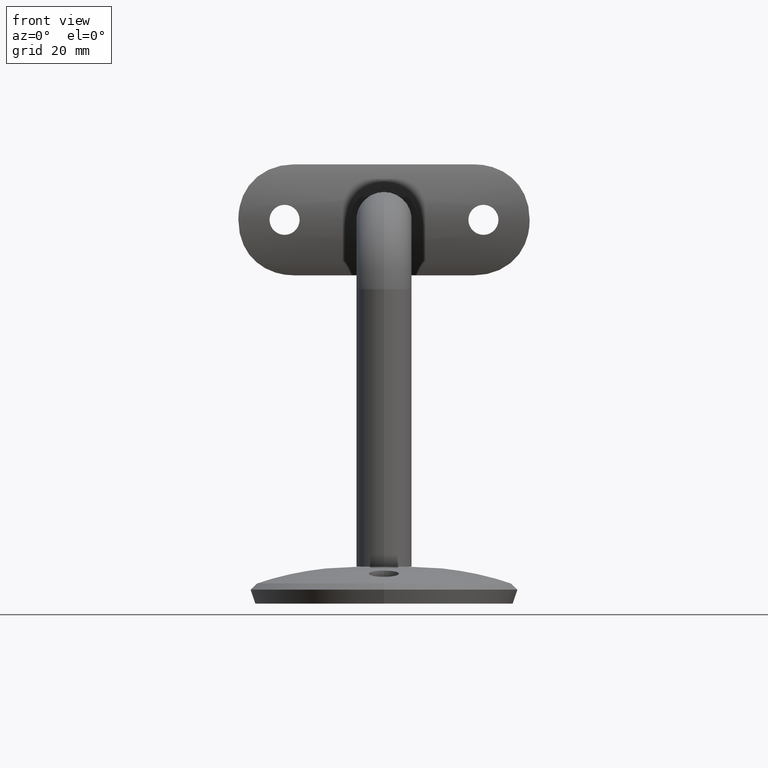
[diagram: clean part render]
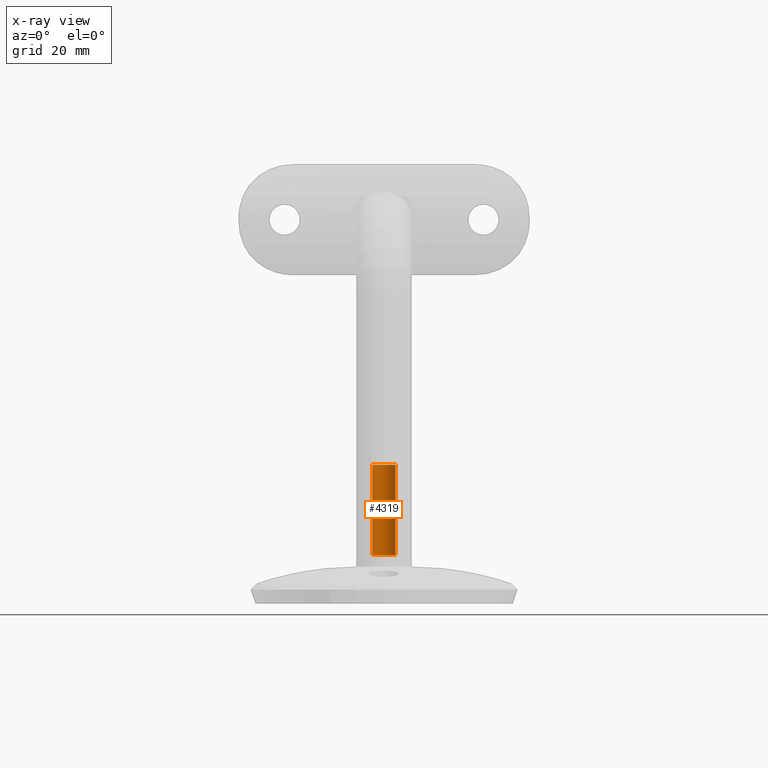
[diagram: x-ray — body ghosted, one internal face saturated and labeled with its STEP entity id]
A machine part, front view, then the same camera in x-ray: the body is ghosted and one INTERNAL B-rep face — a face not visible from any outside direction — is saturated and labeled: STEP entity #4319.
In plain terms, the highlighted cylindrical surface (edge-blend (fillet) strip) has radius 2.5 mm, axis along (-0, -0, -1).
Its self-contained STEP definition (entity closure, byte-faithful):
#326 = ORIENTED_EDGE ( 'NONE', *, *, #15896, .T. ) ;
#830 = VECTOR ( 'NONE', #14554, 1000.000000000000000 ) ;
#1083 = VERTEX_POINT ( 'NONE', #11178 ) ;
#1174 = ORIENTED_EDGE ( 'NONE', *, *, #7601, .F. ) ;
#1278 = ORIENTED_EDGE ( 'NONE', *, *, #15647, .F. ) ;
#1289 = AXIS2_PLACEMENT_3D ( 'NONE', #6117, #3338, #12535 ) ;
#1844 = VERTEX_POINT ( 'NONE', #6984 ) ;
#2052 = AXIS2_PLACEMENT_3D ( 'NONE', #11293, #10214, #11504 ) ;
#2161 = VECTOR ( 'NONE', #5254, 1000.000000000000000 ) ;
#2850 = CARTESIAN_POINT ( 'NONE',  ( -2.499999999999996003, 0.000000000000000000, 0.000000000000000000 ) ) ;
#3338 = DIRECTION ( 'NONE',  ( -0.000000000000000000, -0.000000000000000000, -1.000000000000000000 ) ) ;
#4308 = EDGE_LOOP ( 'NONE', ( #8052, #1174, #326, #1278 ) ) ;
#4319 = ADVANCED_FACE ( 'NONE', ( #16292 ), #10428, .F. ) ;
#4670 = VERTEX_POINT ( 'NONE', #5805 ) ;
#4701 = CARTESIAN_POINT ( 'NONE',  ( 2.499999999999996003, 4.592425496802572000E-16, 2.500000000000002220 ) ) ;
#5254 = DIRECTION ( 'NONE',  ( -0.000000000000000000, -0.000000000000000000, -1.000000000000000000 ) ) ;
#5805 = CARTESIAN_POINT ( 'NONE',  ( 2.499999999999994671, 3.061616997868377718E-16, 22.00000000000000000 ) ) ;
#5813 = CIRCLE ( 'NONE', #13982, 2.499999999999994671 ) ;
#6117 = CARTESIAN_POINT ( 'NONE',  ( 0.000000000000000000, 0.000000000000000000, 0.000000000000000000 ) ) ;
#6459 = LINE ( 'NONE', #2850, #830 ) ;
#6500 = CARTESIAN_POINT ( 'NONE',  ( 2.499999999999996003, 3.061616997868378211E-16, 0.000000000000000000 ) ) ;
#6932 = CARTESIAN_POINT ( 'NONE',  ( 0.000000000000000000, 0.000000000000000000, 22.00000000000000000 ) ) ;
#6984 = CARTESIAN_POINT ( 'NONE',  ( -2.499999999999994671, 0.000000000000000000, 22.00000000000000000 ) ) ;
#7601 = EDGE_CURVE ( 'NONE', #1844, #4670, #5813, .T. ) ;
#8052 = ORIENTED_EDGE ( 'NONE', *, *, #9387, .F. ) ;
#9387 = EDGE_CURVE ( 'NONE', #4670, #14304, #13204, .T. ) ;
#9612 = DIRECTION ( 'NONE',  ( -1.000000000000000000, 0.000000000000000000, 0.000000000000000000 ) ) ;
#10214 = DIRECTION ( 'NONE',  ( 0.000000000000000000, 0.000000000000000000, 1.000000000000000000 ) ) ;
#10428 = CYLINDRICAL_SURFACE ( 'NONE', #1289, 2.499999999999996003 ) ;
#10667 = CIRCLE ( 'NONE', #2052, 2.499999999999996003 ) ;
#11178 = CARTESIAN_POINT ( 'NONE',  ( -2.499999999999996003, 0.000000000000000000, 2.500000000000002220 ) ) ;
#11293 = CARTESIAN_POINT ( 'NONE',  ( 0.000000000000000000, 0.000000000000000000, 2.500000000000002220 ) ) ;
#11504 = DIRECTION ( 'NONE',  ( -1.000000000000000000, 0.000000000000000000, 0.000000000000000000 ) ) ;
#12535 = DIRECTION ( 'NONE',  ( -1.000000000000000000, 0.000000000000000000, 0.000000000000000000 ) ) ;
#13204 = LINE ( 'NONE', #6500, #2161 ) ;
#13982 = AXIS2_PLACEMENT_3D ( 'NONE', #6932, #16029, #9612 ) ;
#14304 = VERTEX_POINT ( 'NONE', #4701 ) ;
#14554 = DIRECTION ( 'NONE',  ( -0.000000000000000000, -0.000000000000000000, -1.000000000000000000 ) ) ;
#15647 = EDGE_CURVE ( 'NONE', #14304, #1083, #10667, .T. ) ;
#15896 = EDGE_CURVE ( 'NONE', #1844, #1083, #6459, .T. ) ;
#16029 = DIRECTION ( 'NONE',  ( -0.000000000000000000, -0.000000000000000000, -1.000000000000000000 ) ) ;
#16292 = FACE_OUTER_BOUND ( 'NONE', #4308, .T. ) ;